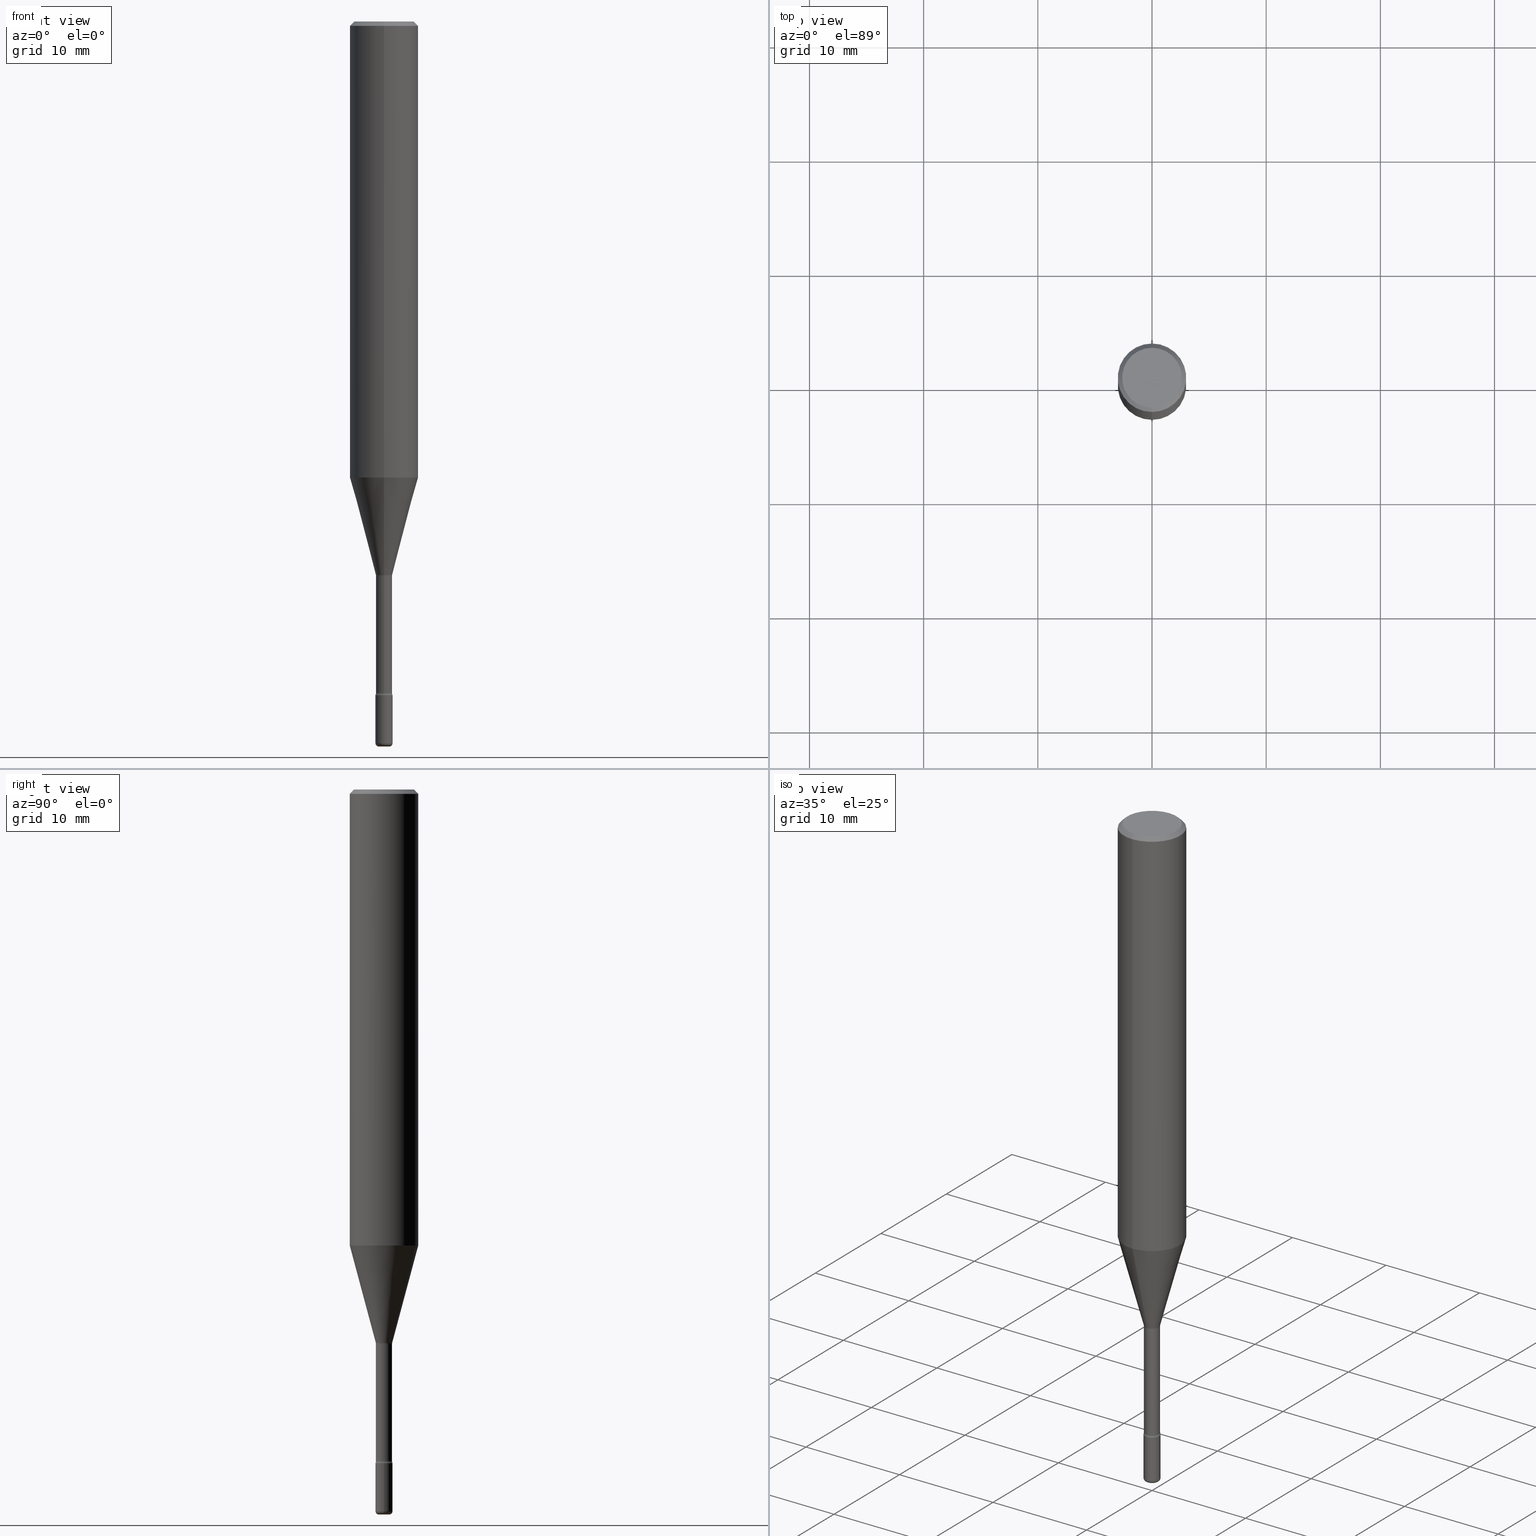
[diagram: canonical four-view strip — front | top / right | iso, engineering-drawing reading convention]
A machine part, canonical four-view strip (front | top / right | iso — engineering-drawing reading convention). The complete STEP part file that produces these views, byte-faithful:
ISO-10303-21;
HEADER;
FILE_DESCRIPTION (( 'STEP AP203' ),
    '1' );
FILE_NAME ('05318.STEP',
    '2024-03-06T20:01:53',
    ( '' ),
    ( '' ),
    'SwSTEP 2.0',
    'SolidWorks 2023',
    '' );
FILE_SCHEMA (( 'CONFIG_CONTROL_DESIGN' ));
ENDSEC;

DATA;
#1 = CARTESIAN_POINT ( 'NONE',  ( 5.201567624825857444E-16, 0.02831111260565732576, -1.907492501787273254 ) ) ;
#2 = CALENDAR_DATE ( 2024, 6, 3 ) ;
#3 = VERTEX_POINT ( 'NONE', #11 ) ;
#4 = EDGE_CURVE ( 'NONE', #375, #262, #450, .T. ) ;
#5 = AXIS2_PLACEMENT_3D ( 'NONE', #531, #396, #89 ) ;
#6 = ORIENTED_EDGE ( 'NONE', *, *, #113, .F. ) ;
#7 = ORIENTED_EDGE ( 'NONE', *, *, #210, .F. ) ;
#8 = PERSON_AND_ORGANIZATION ( #333, #384 ) ;
#9 = EDGE_CURVE ( 'NONE', #485, #416, #59, .T. ) ;
#10 = ORIENTED_EDGE ( 'NONE', *, *, #80, .F. ) ;
#11 = CARTESIAN_POINT ( 'NONE',  ( 7.723156721521011834E-16, 0.1031000000000000111, -3.887509258146911569E-16 ) ) ;
#12 = CIRCLE ( 'NONE', #287, 0.02954999999999999988 ) ;
#13 = VERTEX_POINT ( 'NONE', #452 ) ;
#14 = CARTESIAN_POINT ( 'NONE',  ( 0.01775000000000000189, -8.852650934636795640E-15, -2.500000000000000000 ) ) ;
#15 = CARTESIAN_POINT ( 'NONE',  ( 1.975308805413079384E-16, 0.02780000000000001567, 3.810208230623066369E-16 ) ) ;
#16 = VECTOR ( 'NONE', #127, 39.37007874015748854 ) ;
#17 = CARTESIAN_POINT ( 'NONE',  ( 2.063465471256859647E-16, 0.02954999999999189178, -2.322799999999999976 ) ) ;
#18 = ADVANCED_FACE ( 'NONE', ( #220 ), #50, .T. ) ;
#19 = CARTESIAN_POINT ( 'NONE',  ( 5.680334943006836279E-29, -8.110012853864858834E-15, -2.322799999999999976 ) ) ;
#20 = TOROIDAL_SURFACE ( 'NONE', #351, 0.04280000000000000471, 0.01500000000000002373 ) ;
#21 = LOCAL_TIME ( 15, 1, 53.00000000000000000, #312 ) ;
#22 = DIRECTION ( 'NONE',  ( -6.982962677686265922E-15, -1.000000000000000000, 0.000000000000000000 ) ) ;
#23 = ORIENTED_EDGE ( 'NONE', *, *, #497, .T. ) ;
#24 = CONICAL_SURFACE ( 'NONE', #555, 0.02831111260566398710, 0.2617993877991499074 ) ;
#25 = MECHANICAL_CONTEXT ( 'NONE', #120, 'mechanical' ) ;
#26 = ADVANCED_FACE ( 'NONE', ( #179 ), #318, .T. ) ;
#27 = CARTESIAN_POINT ( 'NONE',  ( -1.941263624396314333E-16, -0.02780000000000667007, -1.911374787463811176 ) ) ;
#28 = DIRECTION ( 'NONE',  ( -2.445468806185136597E-29, 3.491481338843145583E-15, 1.000000000000000000 ) ) ;
#29 = DIRECTION ( 'NONE',  ( -2.445735198447141486E-29, 3.491099849961848612E-15, 1.000000000000000000 ) ) ;
#30 = CARTESIAN_POINT ( 'NONE',  ( 1.239475875289923767E-16, 0.01774999999999127276, -2.500000000000000000 ) ) ;
#31 = CARTESIAN_POINT ( 'NONE',  ( 4.665221552395131109E-29, -6.659246786792900261E-15, -1.907492501787273254 ) ) ;
#32 = CARTESIAN_POINT ( 'NONE',  ( 5.680334943006836279E-29, -8.110012853864858834E-15, -2.322799999999999976 ) ) ;
#33 = LINE ( 'NONE', #529, #403 ) ;
#34 = CARTESIAN_POINT ( 'NONE',  ( 7.199434520694541042E-16, 0.1031000000000000111, -1.353049607272557930E-16 ) ) ;
#35 = DIRECTION ( 'NONE',  ( 1.000000000000000000, -6.982962677686235945E-15, 0.000000000000000000 ) ) ;
#36 = ADVANCED_FACE ( 'NONE', ( #227 ), #515, .T. ) ;
#37 =( LENGTH_UNIT ( ) NAMED_UNIT ( * ) SI_UNIT ( $, .METRE. ) );
#38 = ORIENTED_EDGE ( 'NONE', *, *, #223, .F. ) ;
#39 = DIRECTION ( 'NONE',  ( -2.445735198447141486E-29, 3.491099849961848612E-15, 1.000000000000000000 ) ) ;
#40 = AXIS2_PLACEMENT_3D ( 'NONE', #17, #465, #192 ) ;
#41 = CARTESIAN_POINT ( 'NONE',  ( 7.060985138204549542E-46, -1.004259905542615459E-31, -2.881853128362451060E-17 ) ) ;
#42 = CONICAL_SURFACE ( 'NONE', #520, 0.02831111260566398710, 0.2617993877991499074 ) ;
#43 = PERSON_AND_ORGANIZATION ( #333, #384 ) ;
#44 = APPROVAL ( #221, 'UNSPECIFIED' ) ;
#45 = ORIENTED_EDGE ( 'NONE', *, *, #4, .T. ) ;
#46 = PERSON_AND_ORGANIZATION ( #333, #384 ) ;
#47 = DIRECTION ( 'NONE',  ( -6.982962677686265922E-15, -1.000000000000000000, 3.491099849961848612E-15 ) ) ;
#48 = APPROVAL_PERSON_ORGANIZATION ( #185, #44, #219 ) ;
#49 = EDGE_LOOP ( 'NONE', ( #414, #131, #313, #261 ) ) ;
#50 = CYLINDRICAL_SURFACE ( 'NONE', #152, 0.02954999999999999988 ) ;
#51 = ADVANCED_FACE ( 'NONE', ( #368 ), #68, .F. ) ;
#52 = APPROVAL_DATE_TIME ( #572, #123 ) ;
#53 = CIRCLE ( 'NONE', #481, 0.1180999999999999966 ) ;
#54 = ORIENTED_EDGE ( 'NONE', *, *, #9, .F. ) ;
#55 = ORIENTED_EDGE ( 'NONE', *, *, #319, .F. ) ;
#56 = PRODUCT_DEFINITION_SHAPE ( 'NONE', 'NONE',  #304 ) ;
#57 = ORIENTED_EDGE ( 'NONE', *, *, #462, .F. ) ;
#58 = DIRECTION ( 'NONE',  ( -2.445735198447141486E-29, 3.491099849961848612E-15, 1.000000000000000000 ) ) ;
#59 = CIRCLE ( 'NONE', #543, 0.02780000000000002955 ) ;
#60 = ORIENTED_EDGE ( 'NONE', *, *, #266, .T. ) ;
#61 = FACE_OUTER_BOUND ( 'NONE', #533, .T. ) ;
#62 = DIRECTION ( 'NONE',  ( -2.445735198447141486E-29, 3.491099849961848612E-15, 1.000000000000000000 ) ) ;
#63 = CIRCLE ( 'NONE', #466, 0.02780000000000002955 ) ;
#64 = EDGE_CURVE ( 'NONE', #96, #258, #224, .T. ) ;
#65 = CARTESIAN_POINT ( 'NONE',  ( -1.976954426890781458E-16, -0.02831111260567064497, -1.907492501787273254 ) ) ;
#66 = FACE_OUTER_BOUND ( 'NONE', #138, .T. ) ;
#67 = ADVANCED_FACE ( 'NONE', ( #196 ), #20, .F. ) ;
#68 = PLANE ( 'NONE',  #40 ) ;
#69 = CIRCLE ( 'NONE', #366, 0.1031000000000000111 ) ;
#70 = AXIS2_PLACEMENT_3D ( 'NONE', #562, #28, #200 ) ;
#71 = CARTESIAN_POINT ( 'NONE',  ( -0.02954999999999999988, 2.099653784171096041E-16, -1.453545319170324550E-30 ) ) ;
#72 = CARTESIAN_POINT ( 'NONE',  ( 3.041122909053798096E-16, 0.04279999999999196253, -2.315768819444787852 ) ) ;
#73 = DIRECTION ( 'NONE',  ( -6.982962677686265922E-15, -1.000000000000000000, 3.487819265831411744E-15 ) ) ;
#74 = CARTESIAN_POINT ( 'NONE',  ( 2.099653784171664760E-16, 0.02954999999999190219, -2.322799999999999976 ) ) ;
#75 = DIRECTION ( 'NONE',  ( -6.982962677686265922E-15, -1.000000000000000000, 3.491099849961848612E-15 ) ) ;
#76 = AXIS2_PLACEMENT_3D ( 'NONE', #119, #432, #35 ) ;
#77 = CARTESIAN_POINT ( 'NONE',  ( -1.976954426890781458E-16, -0.02831111260567064497, -1.907492501787273254 ) ) ;
#78 = CARTESIAN_POINT ( 'NONE',  ( 3.041122909053696037E-16, 0.04279999999999332255, -1.911374787463811398 ) ) ;
#79 = DIRECTION ( 'NONE',  ( -2.445735198447141206E-29, 3.491099849961848612E-15, 1.000000000000000000 ) ) ;
#80 = EDGE_CURVE ( 'NONE', #258, #96, #12, .T. ) ;
#81 = AXIS2_PLACEMENT_3D ( 'NONE', #300, #83, #517 ) ;
#82 = AXIS2_PLACEMENT_3D ( 'NONE', #72, #425, #117 ) ;
#83 = DIRECTION ( 'NONE',  ( -2.445735198447141486E-29, 3.491099849961848612E-15, 1.000000000000000000 ) ) ;
#84 = ORIENTED_EDGE ( 'NONE', *, *, #377, .F. ) ;
#85 = ORIENTED_EDGE ( 'NONE', *, *, #454, .F. ) ;
#86 = DIRECTION ( 'NONE',  ( -2.445468806185136877E-29, 3.491481338843145188E-15, 1.000000000000000000 ) ) ;
#87 = EDGE_CURVE ( 'NONE', #310, #491, #214, .T. ) ;
#88 = EDGE_LOOP ( 'NONE', ( #356, #352, #95, #10 ) ) ;
#89 = DIRECTION ( 'NONE',  ( 6.982962677686265922E-15, 1.000000000000000000, -3.487819265831411744E-15 ) ) ;
#90 = ADVANCED_FACE ( 'NONE', ( #149 ), #441, .T. ) ;
#91 = APPROVAL_STATUS ( 'not_yet_approved' ) ;
#92 = DIRECTION ( 'NONE',  ( -2.445735198447141486E-29, 3.491099849961848612E-15, 1.000000000000000000 ) ) ;
#93 = AXIS2_PLACEMENT_3D ( 'NONE', #203, #386, #73 ) ;
#94 = COORDINATED_UNIVERSAL_TIME_OFFSET ( 5, 0, .BEHIND. ) ;
#95 = ORIENTED_EDGE ( 'NONE', *, *, #133, .T. ) ;
#96 = VERTEX_POINT ( 'NONE', #334 ) ;
#97 = EDGE_LOOP ( 'NONE', ( #235, #222, #324, #148 ) ) ;
#98 = ORIENTED_EDGE ( 'NONE', *, *, #223, .T. ) ;
#99 = DIRECTION ( 'NONE',  ( -2.445468806185136597E-29, 3.491481338843145583E-15, 1.000000000000000000 ) ) ;
#100 = CC_DESIGN_DATE_AND_TIME_ASSIGNMENT ( #401, #180, ( #276 ) ) ;
#101 = CIRCLE ( 'NONE', #424, 0.01500000000000001159 ) ;
#102 = EDGE_LOOP ( 'NONE', ( #38, #539, #280, #191 ) ) ;
#103 = ORIENTED_EDGE ( 'NONE', *, *, #391, .F. ) ;
#104 = EDGE_CURVE ( 'NONE', #375, #463, #544, .T. ) ;
#105 = ORIENTED_EDGE ( 'NONE', *, *, #362, .F. ) ;
#106 = DIRECTION ( 'NONE',  ( 1.000000000000000000, -6.982962677686261977E-15, 0.000000000000000000 ) ) ;
#107 = CIRCLE ( 'NONE', #76, 0.01775000000000000189 ) ;
#108 = ADVANCED_FACE ( 'NONE', ( #66 ), #464, .T. ) ;
#109 = CARTESIAN_POINT ( 'NONE',  ( 5.680334943006836279E-29, -8.110012853864858834E-15, -2.322799999999999976 ) ) ;
#110 = DIRECTION ( 'NONE',  ( -2.445735198447141486E-29, 3.491099849961848612E-15, 1.000000000000000000 ) ) ;
#111 = AXIS2_PLACEMENT_3D ( 'NONE', #440, #39, #480 ) ;
#112 = DIRECTION ( 'NONE',  ( -2.445468806185136597E-29, 3.491481338843145583E-15, 1.000000000000000000 ) ) ;
#113 = EDGE_CURVE ( 'NONE', #488, #498, #115, .T. ) ;
#114 = CARTESIAN_POINT ( 'NONE',  ( -1.169113584055446105E-44, 1.669184350826100908E-30, 4.780733988912460139E-16 ) ) ;
#115 = CIRCLE ( 'NONE', #190, 0.02954999999999999988 ) ;
#116 = CARTESIAN_POINT ( 'NONE',  ( -7.587710785535310407E-16, -0.1031000000000000111, 3.311138632474420741E-16 ) ) ;
#117 = DIRECTION ( 'NONE',  ( 7.105427357601001859E-15, 1.000000000000000000, 0.000000000000000000 ) ) ;
#118 = TOROIDAL_SURFACE ( 'NONE', #246, 0.04280000000000004634, 0.01500000000000001506 ) ;
#119 = CARTESIAN_POINT ( 'NONE',  ( 6.113672015462842613E-29, -8.728703347107864943E-15, -2.500000000000000000 ) ) ;
#120 = APPLICATION_CONTEXT ( 'configuration controlled 3d designs of mechanical parts and assemblies' ) ;
#121 = LINE ( 'NONE', #341, #283 ) ;
#122 = DIRECTION ( 'NONE',  ( 0.000000000000000000, 0.000000000000000000, 1.000000000000000000 ) ) ;
#123 = APPROVAL ( #265, 'UNSPECIFIED' ) ;
#124 = ORIENTED_EDGE ( 'NONE', *, *, #266, .F. ) ;
#125 = CARTESIAN_POINT ( 'NONE',  ( 8.246878922347483612E-16, 0.1180999999999999411, -0.01500000000000044006 ) ) ;
#126 = APPLICATION_PROTOCOL_DEFINITION ( 'international standard', 'config_control_design', 1994, #120 ) ;
#127 = DIRECTION ( 'NONE',  ( -4.851104656540962697E-15, -0.7071067811865497932, -0.7071067811865451302 ) ) ;
#128 = AXIS2_PLACEMENT_3D ( 'NONE', #34, #471, #430 ) ;
#129 = DIRECTION ( 'NONE',  ( -2.445735198447141206E-29, 3.491099849961848612E-15, 1.000000000000000000 ) ) ;
#130 = ORIENTED_EDGE ( 'NONE', *, *, #113, .T. ) ;
#131 = ORIENTED_EDGE ( 'NONE', *, *, #80, .T. ) ;
#132 = FACE_OUTER_BOUND ( 'NONE', #181, .T. ) ;
#133 = EDGE_CURVE ( 'NONE', #184, #96, #236, .T. ) ;
#134 = CALENDAR_DATE ( 2024, 6, 3 ) ;
#135 = ORIENTED_EDGE ( 'NONE', *, *, #143, .T. ) ;
#136 = ORIENTED_EDGE ( 'NONE', *, *, #311, .T. ) ;
#137 = DATE_TIME_ROLE ( 'creation_date' ) ;
#138 = EDGE_LOOP ( 'NONE', ( #234, #306 ) ) ;
#139 = ORIENTED_EDGE ( 'NONE', *, *, #308, .F. ) ;
#140 = AXIS2_PLACEMENT_3D ( 'NONE', #114, #469, #467 ) ;
#141 = ORIENTED_EDGE ( 'NONE', *, *, #160, .F. ) ;
#142 = PERSON_AND_ORGANIZATION_ROLE ( 'design_owner' ) ;
#143 = EDGE_CURVE ( 'NONE', #406, #258, #332, .T. ) ;
#144 = ORIENTED_EDGE ( 'NONE', *, *, #418, .F. ) ;
#145 = CARTESIAN_POINT ( 'NONE',  ( 5.663757313182499342E-29, -8.084580178110025826E-15, -2.315768819444787407 ) ) ;
#146 = MANIFOLD_SOLID_BREP ( 'Body-Move/Copy2[2]', #274 ) ;
#147 = ORIENTED_EDGE ( 'NONE', *, *, #536, .F. ) ;
#148 = ORIENTED_EDGE ( 'NONE', *, *, #270, .T. ) ;
#149 = FACE_OUTER_BOUND ( 'NONE', #188, .T. ) ;
#150 = ADVANCED_FACE ( 'NONE', ( #195 ), #421, .T. ) ;
#151 = CIRCLE ( 'NONE', #429, 0.1031000000000000111 ) ;
#152 = AXIS2_PLACEMENT_3D ( 'NONE', #402, #541, #502 ) ;
#153 = CARTESIAN_POINT ( 'NONE',  ( 0.01775000000000000189, -8.811451454838446578E-15, -2.488199999999999967 ) ) ;
#154 = DIRECTION ( 'NONE',  ( -2.445468806185136597E-29, 3.491481338843145583E-15, 1.000000000000000000 ) ) ;
#155 = AXIS2_PLACEMENT_3D ( 'NONE', #32, #251, #525 ) ;
#156 = CARTESIAN_POINT ( 'NONE',  ( 4.665221552395131109E-29, -6.659246786792900261E-15, -1.907492501787273254 ) ) ;
#157 = EDGE_LOOP ( 'NONE', ( #277, #172, #45, #317 ) ) ;
#158 = FACE_OUTER_BOUND ( 'NONE', #367, .T. ) ;
#159 = FACE_OUTER_BOUND ( 'NONE', #371, .T. ) ;
#160 = EDGE_CURVE ( 'NONE', #416, #485, #63, .T. ) ;
#161 =( NAMED_UNIT ( * ) SI_UNIT ( $, .STERADIAN. ) SOLID_ANGLE_UNIT ( ) );
#162 = DIRECTION ( 'NONE',  ( -6.982962677686265922E-15, -1.000000000000000000, 3.491099849961848612E-15 ) ) ;
#163 = AXIS2_PLACEMENT_3D ( 'NONE', #153, #381, #244 ) ;
#164 = DIRECTION ( 'NONE',  ( 1.000000000000000000, -6.982962677686247778E-15, 4.883557194083105614E-29 ) ) ;
#165 = CC_DESIGN_PERSON_AND_ORGANIZATION_ASSIGNMENT ( #316, #363, ( #276 ) ) ;
#166 = DIRECTION ( 'NONE',  ( -2.445735198447141486E-29, 3.491099849961848612E-15, 1.000000000000000000 ) ) ;
#167 = DIRECTION ( 'NONE',  ( -6.982962677686265922E-15, -1.000000000000000000, 3.491099849961848218E-15 ) ) ;
#168 = DIRECTION ( 'NONE',  ( -2.445468806185136877E-29, 3.491481338843145188E-15, 1.000000000000000000 ) ) ;
#169 = CARTESIAN_POINT ( 'NONE',  ( 5.680953718953020096E-29, -8.109126731491383240E-15, -2.322799999999999976 ) ) ;
#170 = LOCAL_TIME ( 15, 1, 53.00000000000000000, #443 ) ;
#171 = ADVANCED_FACE ( 'NONE', ( #61 ), #42, .T. ) ;
#172 = ORIENTED_EDGE ( 'NONE', *, *, #104, .F. ) ;
#173 = DIRECTION ( 'NONE',  ( -2.445735198447141486E-29, 3.491099849961848612E-15, 1.000000000000000000 ) ) ;
#174 = VECTOR ( 'NONE', #256, 39.37007874015748854 ) ;
#175 = DATE_AND_TIME ( #2, #478 ) ;
#176 = ORIENTED_EDGE ( 'NONE', *, *, #560, .T. ) ;
#177 = COORDINATED_UNIVERSAL_TIME_OFFSET ( 5, 0, .BEHIND. ) ;
#178 = CONICAL_SURFACE ( 'NONE', #5, 0.1180999999999999966, 0.7853981633974481680 ) ;
#179 = FACE_OUTER_BOUND ( 'NONE', #216, .T. ) ;
#180 = DATE_TIME_ROLE ( 'classification_date' ) ;
#181 = EDGE_LOOP ( 'NONE', ( #144, #273 ) ) ;
#182 = CC_DESIGN_PERSON_AND_ORGANIZATION_ASSIGNMENT ( #43, #404, ( #552 ) ) ;
#183 = ORIENTED_EDGE ( 'NONE', *, *, #233, .F. ) ;
#184 = VERTEX_POINT ( 'NONE', #14 ) ;
#185 = PERSON_AND_ORGANIZATION ( #333, #384 ) ;
#186 = ADVANCED_FACE ( 'NONE', ( #376 ), #288, .T. ) ;
#187 = VERTEX_POINT ( 'NONE', #373 ) ;
#188 = EDGE_LOOP ( 'NONE', ( #408, #237, #136, #103 ) ) ;
#189 = AXIS2_PLACEMENT_3D ( 'NONE', #364, #58, #47 ) ;
#190 = AXIS2_PLACEMENT_3D ( 'NONE', #282, #194, #468 ) ;
#191 = ORIENTED_EDGE ( 'NONE', *, *, #448, .F. ) ;
#192 = DIRECTION ( 'NONE',  ( -6.982962677686265922E-15, -1.000000000000000000, 3.491099849961848612E-15 ) ) ;
#193 = CIRCLE ( 'NONE', #268, 0.02779999999999999832 ) ;
#194 = DIRECTION ( 'NONE',  ( -2.445735198447141486E-29, 3.491099849961848612E-15, 1.000000000000000000 ) ) ;
#195 = FACE_OUTER_BOUND ( 'NONE', #461, .T. ) ;
#196 = FACE_OUTER_BOUND ( 'NONE', #157, .T. ) ;
#197 = APPROVAL_PERSON_ORGANIZATION ( #226, #123, #398 ) ;
#198 = CC_DESIGN_DATE_AND_TIME_ASSIGNMENT ( #175, #137, ( #304 ) ) ;
#199 = CARTESIAN_POINT ( 'NONE',  ( -1.169113584055446105E-44, 1.669184350826100908E-30, 4.780733988912460139E-16 ) ) ;
#200 = DIRECTION ( 'NONE',  ( 1.000000000000000000, -6.982962677686266711E-15, 4.876176775795935793E-29 ) ) ;
#201 = CARTESIAN_POINT ( 'NONE',  ( 3.668602797670719043E-31, -5.236649774942783100E-17, -0.01500000000000002720 ) ) ;
#202 = LENGTH_MEASURE_WITH_UNIT ( LENGTH_MEASURE( 0.02539999999999999897 ), #37 );
#203 = CARTESIAN_POINT ( 'NONE',  ( 3.668602797670719043E-31, -5.236649774942783100E-17, -0.01500000000000002720 ) ) ;
#204 = FACE_OUTER_BOUND ( 'NONE', #231, .T. ) ;
#205 = CC_DESIGN_PERSON_AND_ORGANIZATION_ASSIGNMENT ( #8, #490, ( #552 ) ) ;
#206 = DIRECTION ( 'NONE',  ( -6.982962677686265922E-15, -1.000000000000000000, 4.626330217890369336E-15 ) ) ;
#207 = DIRECTION ( 'NONE',  ( -6.982962677686265922E-15, -1.000000000000000000, 0.000000000000000000 ) ) ;
#208 = AXIS2_PLACEMENT_3D ( 'NONE', #241, #330, #420 ) ;
#209 = DIRECTION ( 'NONE',  ( -6.982962677686265922E-15, -1.000000000000000000, 0.000000000000000000 ) ) ;
#210 = EDGE_CURVE ( 'NONE', #375, #538, #548, .T. ) ;
#211 = PLANE ( 'NONE',  #128 ) ;
#212 = ORIENTED_EDGE ( 'NONE', *, *, #104, .T. ) ;
#213 = FACE_OUTER_BOUND ( 'NONE', #97, .T. ) ;
#214 = CIRCLE ( 'NONE', #338, 0.02954999999999999988 ) ;
#215 = PERSON_AND_ORGANIZATION ( #333, #384 ) ;
#216 = EDGE_LOOP ( 'NONE', ( #407, #23, #457, #105 ) ) ;
#217 = CARTESIAN_POINT ( 'NONE',  ( 3.845663783486448442E-29, -5.489390783621017201E-15, -1.572395812076531119 ) ) ;
#218 = TOROIDAL_SURFACE ( 'NONE', #537, 0.04280000000000000471, 0.01500000000000002373 ) ;
#219 = APPROVAL_ROLE ( '' ) ;
#220 = FACE_OUTER_BOUND ( 'NONE', #495, .T. ) ;
#221 = APPROVAL_STATUS ( 'not_yet_approved' ) ;
#222 = ORIENTED_EDGE ( 'NONE', *, *, #285, .F. ) ;
#223 = EDGE_CURVE ( 'NONE', #416, #13, #242, .T. ) ;
#224 = CIRCLE ( 'NONE', #394, 0.02954999999999999988 ) ;
#225 = CC_DESIGN_SECURITY_CLASSIFICATION ( #276, ( #552 ) ) ;
#226 = PERSON_AND_ORGANIZATION ( #333, #384 ) ;
#227 = FACE_OUTER_BOUND ( 'NONE', #88, .T. ) ;
#228 = AXIS2_PLACEMENT_3D ( 'NONE', #78, #426, #260 ) ;
#229 = DESIGN_CONTEXT ( 'detailed design', #239, 'design' ) ;
#230 = AXIS2_PLACEMENT_3D ( 'NONE', #169, #259, #209 ) ;
#231 = EDGE_LOOP ( 'NONE', ( #547, #135, #370, #361 ) ) ;
#232 = ORIENTED_EDGE ( 'NONE', *, *, #448, .T. ) ;
#233 = EDGE_CURVE ( 'NONE', #416, #488, #342, .T. ) ;
#234 = ORIENTED_EDGE ( 'NONE', *, *, #87, .T. ) ;
#235 = ORIENTED_EDGE ( 'NONE', *, *, #337, .F. ) ;
#236 = CIRCLE ( 'NONE', #163, 0.01180000000000033626 ) ;
#237 = ORIENTED_EDGE ( 'NONE', *, *, #337, .T. ) ;
#238 = CARTESIAN_POINT ( 'NONE',  ( 6.084815483549856310E-29, -8.687503867309514303E-15, -2.488199999999999967 ) ) ;
#239 = APPLICATION_CONTEXT ( 'configuration controlled 3d designs of mechanical parts and assemblies' ) ;
#240 = CIRCLE ( 'NONE', #374, 0.02831111260566398710 ) ;
#241 = CARTESIAN_POINT ( 'NONE',  ( -0.01775000000000000189, -8.561382531712097000E-15, -2.488199999999999967 ) ) ;
#242 = LINE ( 'NONE', #15, #470 ) ;
#243 = ADVANCED_FACE ( 'NONE', ( #431 ), #218, .F. ) ;
#244 = DIRECTION ( 'NONE',  ( 1.000000000000000000, -6.982962677686347963E-15, 0.000000000000000000 ) ) ;
#245 = CC_DESIGN_APPROVAL ( #44, ( #552 ) ) ;
#246 = AXIS2_PLACEMENT_3D ( 'NONE', #561, #340, #162 ) ;
#247 = DIRECTION ( 'NONE',  ( -2.445735198447141486E-29, 3.491099849961848612E-15, 1.000000000000000000 ) ) ;
#248 = EDGE_CURVE ( 'NONE', #491, #310, #571, .T. ) ;
#249 = DIRECTION ( 'NONE',  ( -6.982962677686265922E-15, -1.000000000000000000, 0.000000000000000000 ) ) ;
#250 = CARTESIAN_POINT ( 'NONE',  ( -8.102248135368174406E-16, -0.1181000000000000522, -0.01499999999999961607 ) ) ;
#251 = DIRECTION ( 'NONE',  ( -2.445468806185136597E-29, 3.491481338843145583E-15, 1.000000000000000000 ) ) ;
#252 = LINE ( 'NONE', #442, #563 ) ;
#253 = LINE ( 'NONE', #435, #301 ) ;
#254 = ORIENTED_EDGE ( 'NONE', *, *, #497, .F. ) ;
#255 = AXIS2_PLACEMENT_3D ( 'NONE', #390, #303, #164 ) ;
#256 = DIRECTION ( 'NONE',  ( 4.937700262164546464E-15, 0.7071067811865447972, -0.7071067811865500152 ) ) ;
#257 = CARTESIAN_POINT ( 'NONE',  ( 8.391509709327170485E-16, 0.1180999999999999689, -0.01500000000000044006 ) ) ;
#258 = VERTEX_POINT ( 'NONE', #565 ) ;
#259 = DIRECTION ( 'NONE',  ( -2.445735198447141486E-29, 3.491099849961848612E-15, 1.000000000000000000 ) ) ;
#260 = DIRECTION ( 'NONE',  ( 7.105427357600997914E-15, 1.000000000000000000, 0.000000000000000000 ) ) ;
#261 = ORIENTED_EDGE ( 'NONE', *, *, #248, .F. ) ;
#262 = VERTEX_POINT ( 'NONE', #27 ) ;
#263 = CARTESIAN_POINT ( 'NONE',  ( 2.037481294792655692E-16, 0.02779999999999194574, -2.315768819444787407 ) ) ;
#264 = AXIS2_PLACEMENT_3D ( 'NONE', #326, #508, #509 ) ;
#265 = APPROVAL_STATUS ( 'not_yet_approved' ) ;
#266 = EDGE_CURVE ( 'NONE', #463, #375, #240, .T. ) ;
#267 = ORIENTED_EDGE ( 'NONE', *, *, #4, .F. ) ;
#268 = AXIS2_PLACEMENT_3D ( 'NONE', #472, #475, #249 ) ;
#269 = CALENDAR_DATE ( 2024, 6, 3 ) ;
#270 = EDGE_CURVE ( 'NONE', #545, #187, #482, .T. ) ;
#271 = DIRECTION ( 'NONE',  ( -6.982962677686265922E-15, -1.000000000000000000, 0.000000000000000000 ) ) ;
#272 = EDGE_LOOP ( 'NONE', ( #445, #6 ) ) ;
#273 = ORIENTED_EDGE ( 'NONE', *, *, #359, .F. ) ;
#274 = CLOSED_SHELL ( 'NONE', ( #243, #186, #275, #90, #26, #521, #171, #150, #395, #553, #51, #512, #346, #67 ) ) ;
#275 = ADVANCED_FACE ( 'NONE', ( #159 ), #118, .F. ) ;
#276 = SECURITY_CLASSIFICATION ( '', '', #449 ) ;
#277 = ORIENTED_EDGE ( 'NONE', *, *, #487, .F. ) ;
#278 = DIRECTION ( 'NONE',  ( 1.000000000000000000, -6.982962677686247778E-15, 4.883557194083105614E-29 ) ) ;
#279 = TOROIDAL_SURFACE ( 'NONE', #81, 0.04280000000000004634, 0.01500000000000001506 ) ;
#280 = ORIENTED_EDGE ( 'NONE', *, *, #377, .T. ) ;
#281 = CARTESIAN_POINT ( 'NONE',  ( 6.084815483549856310E-29, -8.687503867309514303E-15, -2.488199999999999967 ) ) ;
#282 = CARTESIAN_POINT ( 'NONE',  ( 5.680953718953020096E-29, -8.109126731491383240E-15, -2.322799999999999976 ) ) ;
#283 = VECTOR ( 'NONE', #298, 39.37007874015748854 ) ;
#284 = DIRECTION ( 'NONE',  ( -6.982962677686265922E-15, -1.000000000000000000, 0.000000000000000000 ) ) ;
#285 = EDGE_CURVE ( 'NONE', #3, #535, #69, .T. ) ;
#286 = DIRECTION ( 'NONE',  ( 1.000000000000000000, -6.982962677686265922E-15, 4.876176775795935793E-29 ) ) ;
#287 = AXIS2_PLACEMENT_3D ( 'NONE', #238, #154, #505 ) ;
#288 = CYLINDRICAL_SURFACE ( 'NONE', #140, 0.02780000000000001567 ) ;
#289 = ORIENTED_EDGE ( 'NONE', *, *, #64, .T. ) ;
#290 = CARTESIAN_POINT ( 'NONE',  ( -2.988708026049158050E-16, -0.04280000000000813015, -2.315768819444787407 ) ) ;
#291 = DIRECTION ( 'NONE',  ( -2.445735198447141206E-29, 3.491099849961848612E-15, 1.000000000000000000 ) ) ;
#292 = CYLINDRICAL_SURFACE ( 'NONE', #70, 0.02954999999999999988 ) ;
#293 = DIRECTION ( 'NONE',  ( -2.445735198447141486E-29, 3.491099849961848612E-15, 1.000000000000000000 ) ) ;
#294 = ADVANCED_BREP_SHAPE_REPRESENTATION ( '05318', ( #513, #146, #323 ), #503 ) ;
#295 = DIRECTION ( 'NONE',  ( -6.982962677686265922E-15, -1.000000000000000000, 3.491099849961848218E-15 ) ) ;
#296 = CARTESIAN_POINT ( 'NONE',  ( -8.246878922347479668E-16, -0.1180999999999999966, 8.903722911717403556E-16 ) ) ;
#297 = DIRECTION ( 'NONE',  ( 1.000000000000000000, 0.000000000000000000, 0.000000000000000000 ) ) ;
#298 = DIRECTION ( 'NONE',  ( 1.839019923739597554E-15, 0.2588190451025245697, 0.9659258262890670910 ) ) ;
#299 = CC_DESIGN_APPROVAL ( #123, ( #304 ) ) ;
#300 = CARTESIAN_POINT ( 'NONE',  ( 5.663140410288407648E-29, -8.085463618166297147E-15, -2.315768819444787407 ) ) ;
#301 = VECTOR ( 'NONE', #129, 39.37007874015748143 ) ;
#302 = ORIENTED_EDGE ( 'NONE', *, *, #9, .T. ) ;
#303 = DIRECTION ( 'NONE',  ( -2.445468806185136597E-29, 3.491481338843145583E-15, 1.000000000000000000 ) ) ;
#304 = PRODUCT_DEFINITION ( 'UNKNOWN', '', #552, #229 ) ;
#305 = CARTESIAN_POINT ( 'NONE',  ( -8.246878922347096084E-16, -0.1181000000000055200, -1.572395812076530897 ) ) ;
#306 = ORIENTED_EDGE ( 'NONE', *, *, #248, .T. ) ;
#307 = DIRECTION ( 'NONE',  ( -1.000000000000000000, 6.982962677686265922E-15, -4.876176775795935793E-29 ) ) ;
#308 = EDGE_CURVE ( 'NONE', #262, #13, #193, .T. ) ;
#309 = DATE_AND_TIME ( #134, #422 ) ;
#310 = VERTEX_POINT ( 'NONE', #427 ) ;
#311 = EDGE_CURVE ( 'NONE', #187, #545, #556, .T. ) ;
#312 = COORDINATED_UNIVERSAL_TIME_OFFSET ( 5, 0, .BEHIND. ) ;
#313 = ORIENTED_EDGE ( 'NONE', *, *, #454, .T. ) ;
#314 = DATE_AND_TIME ( #369, #21 ) ;
#315 = DIRECTION ( 'NONE',  ( -1.000000000000000000, 6.982962677686265922E-15, -4.883557194083112340E-29 ) ) ;
#316 = PERSON_AND_ORGANIZATION ( #333, #384 ) ;
#317 = ORIENTED_EDGE ( 'NONE', *, *, #308, .T. ) ;
#318 = CYLINDRICAL_SURFACE ( 'NONE', #189, 0.1180999999999999966 ) ;
#319 = EDGE_CURVE ( 'NONE', #463, #451, #121, .T. ) ;
#320 = PERSON_AND_ORGANIZATION ( #333, #384 ) ;
#321 = DIRECTION ( 'NONE',  ( -6.982962677686263555E-15, -1.000000000000000000, 0.000000000000000000 ) ) ;
#322 = AXIS2_PLACEMENT_3D ( 'NONE', #201, #389, #559 ) ;
#323 = AXIS2_PLACEMENT_3D ( 'NONE', #524, #122, #297 ) ;
#324 = ORIENTED_EDGE ( 'NONE', *, *, #391, .T. ) ;
#325 = DIRECTION ( 'NONE',  ( -2.445468806185136597E-29, 3.491481338843145583E-15, 1.000000000000000000 ) ) ;
#326 = CARTESIAN_POINT ( 'NONE',  ( 3.668602797670719043E-31, -5.236649774942783100E-17, -0.01500000000000002720 ) ) ;
#327 = AXIS2_PLACEMENT_3D ( 'NONE', #348, #173, #568 ) ;
#328 = CLOSED_SHELL ( 'NONE', ( #18, #350, #108, #459, #36, #474 ) ) ;
#329 = EDGE_CURVE ( 'NONE', #498, #488, #399, .T. ) ;
#330 = DIRECTION ( 'NONE',  ( 7.105427357601001859E-15, 1.000000000000000000, -3.491481338843145583E-15 ) ) ;
#331 = CIRCLE ( 'NONE', #228, 0.01500000000000002720 ) ;
#332 = CIRCLE ( 'NONE', #208, 0.01180000000000033626 ) ;
#333 = PERSON ( 'UNSPECIFIED', 'UNSPECIFIED', 'UNSPECIFIED', ('UNSPECIFIED'), ('UNSPECIFIED'), ('UNSPECIFIED') ) ;
#334 = CARTESIAN_POINT ( 'NONE',  ( 0.02955000000000016641, -8.893850414435146280E-15, -2.488199999999999967 ) ) ;
#335 = DIRECTION ( 'NONE',  ( -2.445735198447141486E-29, 3.491099849961848612E-15, 1.000000000000000000 ) ) ;
#336 = ORIENTED_EDGE ( 'NONE', *, *, #433, .T. ) ;
#337 = EDGE_CURVE ( 'NONE', #535, #187, #526, .T. ) ;
#338 = AXIS2_PLACEMENT_3D ( 'NONE', #19, #112, #511 ) ;
#339 = FACE_OUTER_BOUND ( 'NONE', #460, .T. ) ;
#340 = DIRECTION ( 'NONE',  ( -2.445735198447141486E-29, 3.491099849961848612E-15, 1.000000000000000000 ) ) ;
#341 = CARTESIAN_POINT ( 'NONE',  ( 2.011625540324540952E-16, 0.02831111260565732576, -1.907492501787273254 ) ) ;
#342 = CIRCLE ( 'NONE', #82, 0.01500000000000001159 ) ;
#343 = CARTESIAN_POINT ( 'NONE',  ( -0.02954999999999999988, -8.188792982170078000E-15, -2.322799999999999976 ) ) ;
#344 = DIRECTION ( 'NONE',  ( -2.445735198447141486E-29, 3.491099849961848612E-15, 1.000000000000000000 ) ) ;
#345 = DIRECTION ( 'NONE',  ( -2.445735198447141486E-29, 3.491099849961848612E-15, 1.000000000000000000 ) ) ;
#346 = ADVANCED_FACE ( 'NONE', ( #489 ), #354, .T. ) ;
#347 = CARTESIAN_POINT ( 'NONE',  ( 4.674207419671495875E-29, -6.673529401965179821E-15, -1.911374787463811176 ) ) ;
#348 = CARTESIAN_POINT ( 'NONE',  ( 4.674716595124667421E-29, -6.672800233735771352E-15, -1.911374787463811176 ) ) ;
#349 = CARTESIAN_POINT ( 'NONE',  ( 3.845663783486448442E-29, -5.489390783621017201E-15, -1.572395812076531119 ) ) ;
#350 = ADVANCED_FACE ( 'NONE', ( #204 ), #434, .T. ) ;
#351 = AXIS2_PLACEMENT_3D ( 'NONE', #378, #62, #554 ) ;
#352 = ORIENTED_EDGE ( 'NONE', *, *, #359, .T. ) ;
#353 = ORIENTED_EDGE ( 'NONE', *, *, #233, .T. ) ;
#354 = CYLINDRICAL_SURFACE ( 'NONE', #111, 0.02780000000000001567 ) ;
#355 = CARTESIAN_POINT ( 'NONE',  ( -2.063465471255723934E-16, -0.02955000000000811491, -2.322799999999999976 ) ) ;
#356 = ORIENTED_EDGE ( 'NONE', *, *, #143, .F. ) ;
#357 = AXIS2_PLACEMENT_3D ( 'NONE', #349, #438, #206 ) ;
#358 = CARTESIAN_POINT ( 'NONE',  ( 8.391509709327165554E-16, 0.1180999999999945010, -1.572395812076531563 ) ) ;
#359 = EDGE_CURVE ( 'NONE', #406, #184, #549, .T. ) ;
#360 = CALENDAR_DATE ( 2024, 6, 3 ) ;
#361 = ORIENTED_EDGE ( 'NONE', *, *, #133, .F. ) ;
#362 = EDGE_CURVE ( 'NONE', #538, #187, #473, .T. ) ;
#363 = PERSON_AND_ORGANIZATION_ROLE ( 'classification_officer' ) ;
#364 = CARTESIAN_POINT ( 'NONE',  ( -1.169113584055446105E-44, 1.669184350826100908E-30, 4.780733988912460139E-16 ) ) ;
#365 = ORIENTED_EDGE ( 'NONE', *, *, #487, .T. ) ;
#366 = AXIS2_PLACEMENT_3D ( 'NONE', #518, #344, #295 ) ;
#367 = EDGE_LOOP ( 'NONE', ( #212, #484, #57, #7 ) ) ;
#368 = FACE_OUTER_BOUND ( 'NONE', #272, .T. ) ;
#369 = CALENDAR_DATE ( 2024, 6, 3 ) ;
#370 = ORIENTED_EDGE ( 'NONE', *, *, #64, .F. ) ;
#371 = EDGE_LOOP ( 'NONE', ( #141, #353, #130, #147 ) ) ;
#372 = AXIS2_PLACEMENT_3D ( 'NONE', #109, #379, #286 ) ;
#373 = CARTESIAN_POINT ( 'NONE',  ( -8.246878922347475723E-16, -0.1181000000000000522, -0.01499999999999961607 ) ) ;
#374 = AXIS2_PLACEMENT_3D ( 'NONE', #383, #29, #207 ) ;
#375 = VERTEX_POINT ( 'NONE', #77 ) ;
#376 = FACE_OUTER_BOUND ( 'NONE', #415, .T. ) ;
#377 = EDGE_CURVE ( 'NONE', #485, #262, #252, .T. ) ;
#378 = CARTESIAN_POINT ( 'NONE',  ( 4.674207419671495875E-29, -6.673529401965179821E-15, -1.911374787463811176 ) ) ;
#379 = DIRECTION ( 'NONE',  ( -2.438088387897960049E-29, 3.491481338843145188E-15, 1.000000000000000000 ) ) ;
#380 = CC_DESIGN_PERSON_AND_ORGANIZATION_ASSIGNMENT ( #46, #532, ( #304 ) ) ;
#381 = DIRECTION ( 'NONE',  ( -6.982962677686266711E-15, -1.000000000000000000, 3.491481338843145583E-15 ) ) ;
#382 = DIRECTION ( 'NONE',  ( -6.982962677686266711E-15, -1.000000000000000000, 0.000000000000000000 ) ) ;
#383 = CARTESIAN_POINT ( 'NONE',  ( 4.665221552395131109E-29, -6.659246786792900261E-15, -1.907492501787273254 ) ) ;
#384 = ORGANIZATION ( 'UNSPECIFIED', 'UNSPECIFIED', '' ) ;
#385 =( NAMED_UNIT ( * ) PLANE_ANGLE_UNIT ( ) SI_UNIT ( $, .RADIAN. ) );
#386 = DIRECTION ( 'NONE',  ( -2.445735198447141486E-29, 3.491099849961848612E-15, 1.000000000000000000 ) ) ;
#387 = DIRECTION ( 'NONE',  ( 2.438088387897960049E-29, -3.491481338843145188E-15, -1.000000000000000000 ) ) ;
#388 = FACE_OUTER_BOUND ( 'NONE', #492, .T. ) ;
#389 = DIRECTION ( 'NONE',  ( -2.445735198447141486E-29, 3.491099849961848612E-15, 1.000000000000000000 ) ) ;
#390 = CARTESIAN_POINT ( 'NONE',  ( 6.084815483549856310E-29, -8.687503867309514303E-15, -2.488199999999999967 ) ) ;
#391 = EDGE_CURVE ( 'NONE', #3, #545, #523, .T. ) ;
#392 = DIRECTION ( 'NONE',  ( -1.000000000000000000, 6.982962677686265922E-15, -4.883557194083112340E-29 ) ) ;
#393 = DIRECTION ( 'NONE',  ( -2.445735198447141206E-29, 3.491099849961848612E-15, 1.000000000000000000 ) ) ;
#394 = AXIS2_PLACEMENT_3D ( 'NONE', #281, #325, #106 ) ;
#395 = ADVANCED_FACE ( 'NONE', ( #213 ), #178, .T. ) ;
#396 = DIRECTION ( 'NONE',  ( 2.445735198447141486E-29, -3.491099849961848612E-15, -1.000000000000000000 ) ) ;
#397 = APPROVAL_PERSON_ORGANIZATION ( #320, #569, #534 ) ;
#398 = APPROVAL_ROLE ( '' ) ;
#399 = CIRCLE ( 'NONE', #230, 0.02954999999999999988 ) ;
#400 = DIRECTION ( 'NONE',  ( -6.982962677686265922E-15, -1.000000000000000000, 4.626330217890369336E-15 ) ) ;
#401 = DATE_AND_TIME ( #269, #170 ) ;
#402 = CARTESIAN_POINT ( 'NONE',  ( 0.000000000000000000, 0.000000000000000000, 0.000000000000000000 ) ) ;
#403 = VECTOR ( 'NONE', #86, 39.37007874015748143 ) ;
#404 = PERSON_AND_ORGANIZATION_ROLE ( 'design_supplier' ) ;
#405 = AXIS2_PLACEMENT_3D ( 'NONE', #546, #315, #321 ) ;
#406 = VERTEX_POINT ( 'NONE', #570 ) ;
#407 = ORIENTED_EDGE ( 'NONE', *, *, #462, .T. ) ;
#408 = ORIENTED_EDGE ( 'NONE', *, *, #433, .F. ) ;
#409 = CIRCLE ( 'NONE', #357, 0.1180999999999999966 ) ;
#410 = AXIS2_PLACEMENT_3D ( 'NONE', #199, #110, #557 ) ;
#411 = CC_DESIGN_PERSON_AND_ORGANIZATION_ASSIGNMENT ( #215, #142, ( #506 ) ) ;
#412 = APPROVAL_DATE_TIME ( #309, #44 ) ;
#413 = ORIENTED_EDGE ( 'NONE', *, *, #87, .F. ) ;
#414 = ORIENTED_EDGE ( 'NONE', *, *, #560, .F. ) ;
#415 = EDGE_LOOP ( 'NONE', ( #302, #98, #139, #84 ) ) ;
#416 = VERTEX_POINT ( 'NONE', #263 ) ;
#417 = DIRECTION ( 'NONE',  ( -1.807323732225327773E-15, -0.2588190451025178529, 0.9659258262890690894 ) ) ;
#418 = EDGE_CURVE ( 'NONE', #184, #406, #107, .T. ) ;
#419 = AXIS2_PLACEMENT_3D ( 'NONE', #486, #566, #476 ) ;
#420 = DIRECTION ( 'NONE',  ( -1.000000000000000000, 7.105427357601042879E-15, 0.000000000000000000 ) ) ;
#421 = CYLINDRICAL_SURFACE ( 'NONE', #410, 0.1180999999999999966 ) ;
#422 = LOCAL_TIME ( 15, 1, 53.00000000000000000, #177 ) ;
#423 = CARTESIAN_POINT ( 'NONE',  ( 4.665221552395131109E-29, -6.659246786792900261E-15, -1.907492501787273254 ) ) ;
#424 = AXIS2_PLACEMENT_3D ( 'NONE', #290, #392, #382 ) ;
#425 = DIRECTION ( 'NONE',  ( 1.000000000000000000, -7.105427357601001070E-15, 4.926310836650708410E-29 ) ) ;
#426 = DIRECTION ( 'NONE',  ( 1.000000000000000000, -7.105427357601001070E-15, 4.926310836650708410E-29 ) ) ;
#427 = CARTESIAN_POINT ( 'NONE',  ( 0.02954999999999999988, -8.316359400990487656E-15, -2.322799999999999976 ) ) ;
#428 = PLANE ( 'NONE',  #510 ) ;
#429 = AXIS2_PLACEMENT_3D ( 'NONE', #41, #437, #167 ) ;
#430 = DIRECTION ( 'NONE',  ( 6.982962677686265922E-15, 1.000000000000000000, -3.491099849961848612E-15 ) ) ;
#431 = FACE_OUTER_BOUND ( 'NONE', #530, .T. ) ;
#432 = DIRECTION ( 'NONE',  ( -2.445468806185136597E-29, 3.491481338843145583E-15, 1.000000000000000000 ) ) ;
#433 = EDGE_CURVE ( 'NONE', #535, #3, #151, .T. ) ;
#434 = TOROIDAL_SURFACE ( 'NONE', #255, 0.01775000000000000189, 0.01180000000000033800 ) ;
#435 = CARTESIAN_POINT ( 'NONE',  ( 8.391509709326781971E-16, 0.1180999999999999966, 6.577450661075172151E-17 ) ) ;
#436 = ORIENTED_EDGE ( 'NONE', *, *, #285, .T. ) ;
#437 = DIRECTION ( 'NONE',  ( -2.445735198447141486E-29, 3.491099849961848612E-15, 1.000000000000000000 ) ) ;
#438 = DIRECTION ( 'NONE',  ( -2.445735198447141486E-29, 3.491099849961848612E-15, 1.000000000000000000 ) ) ;
#439 = ORIENTED_EDGE ( 'NONE', *, *, #536, .T. ) ;
#440 = CARTESIAN_POINT ( 'NONE',  ( -1.169113584055446105E-44, 1.669184350826100908E-30, 4.780733988912460139E-16 ) ) ;
#441 = CONICAL_SURFACE ( 'NONE', #264, 0.1180999999999999966, 0.7853981633974481680 ) ;
#442 = CARTESIAN_POINT ( 'NONE',  ( -1.941263624396782966E-16, -0.02780000000000001567, 5.751259747201854896E-16 ) ) ;
#443 = COORDINATED_UNIVERSAL_TIME_OFFSET ( 5, 0, .BEHIND. ) ;
#444 = VECTOR ( 'NONE', #393, 39.37007874015748143 ) ;
#445 = ORIENTED_EDGE ( 'NONE', *, *, #329, .F. ) ;
#446 = SHAPE_DEFINITION_REPRESENTATION ( #56, #294 ) ;
#447 = ORIENTED_EDGE ( 'NONE', *, *, #558, .T. ) ;
#448 = EDGE_CURVE ( 'NONE', #13, #262, #507, .T. ) ;
#449 = SECURITY_CLASSIFICATION_LEVEL ( 'unclassified' ) ;
#450 = CIRCLE ( 'NONE', #405, 0.01500000000000002720 ) ;
#451 = VERTEX_POINT ( 'NONE', #358 ) ;
#452 = CARTESIAN_POINT ( 'NONE',  ( 1.975308805413645638E-16, 0.02779999999999332658, -1.911374787463811176 ) ) ;
#453 = DIMENSIONAL_EXPONENTS ( 1.000000000000000000, 0.000000000000000000, 0.000000000000000000, 0.000000000000000000, 0.000000000000000000, 0.000000000000000000, 0.000000000000000000 ) ;
#454 = EDGE_CURVE ( 'NONE', #96, #310, #33, .T. ) ;
#455 = UNCERTAINTY_MEASURE_WITH_UNIT (LENGTH_MEASURE( 1.000000000000000082E-05 ), #522, 'distance_accuracy_value', 'NONE');
#456 = APPLICATION_PROTOCOL_DEFINITION ( 'international standard', 'config_control_design', 1994, #239 ) ;
#457 = ORIENTED_EDGE ( 'NONE', *, *, #311, .F. ) ;
#458 = VECTOR ( 'NONE', #168, 39.37007874015748143 ) ;
#459 = ADVANCED_FACE ( 'NONE', ( #132 ), #428, .T. ) ;
#460 = EDGE_LOOP ( 'NONE', ( #183, #54, #439, #528 ) ) ;
#461 = EDGE_LOOP ( 'NONE', ( #254, #447, #479, #501 ) ) ;
#462 = EDGE_CURVE ( 'NONE', #538, #451, #53, .T. ) ;
#463 = VERTEX_POINT ( 'NONE', #1 ) ;
#464 = PLANE ( 'NONE',  #372 ) ;
#465 = DIRECTION ( 'NONE',  ( -2.445735198447141206E-29, 3.491099849961848612E-15, 1.000000000000000000 ) ) ;
#466 = AXIS2_PLACEMENT_3D ( 'NONE', #550, #247, #284 ) ;
#467 = DIRECTION ( 'NONE',  ( -6.982962677686265922E-15, -1.000000000000000000, 3.491099849961847429E-15 ) ) ;
#468 = DIRECTION ( 'NONE',  ( -6.982962677686265922E-15, -1.000000000000000000, 0.000000000000000000 ) ) ;
#469 = DIRECTION ( 'NONE',  ( -2.445735198447141486E-29, 3.491099849961848612E-15, 1.000000000000000000 ) ) ;
#470 = VECTOR ( 'NONE', #291, 39.37007874015748143 ) ;
#471 = DIRECTION ( 'NONE',  ( 2.445735198447141206E-29, -3.491099849961848612E-15, -1.000000000000000000 ) ) ;
#472 = CARTESIAN_POINT ( 'NONE',  ( 4.674716595124667421E-29, -6.672800233735771352E-15, -1.911374787463811176 ) ) ;
#473 = LINE ( 'NONE', #296, #444 ) ;
#474 = ADVANCED_FACE ( 'NONE', ( #519 ), #292, .T. ) ;
#475 = DIRECTION ( 'NONE',  ( -2.445735198447141486E-29, 3.491099849961848612E-15, 1.000000000000000000 ) ) ;
#476 = DIRECTION ( 'NONE',  ( 1.000000000000000000, -6.982962677686235945E-15, 0.000000000000000000 ) ) ;
#477 = AXIS2_PLACEMENT_3D ( 'NONE', #499, #99, #278 ) ;
#478 = LOCAL_TIME ( 15, 1, 53.00000000000000000, #94 ) ;
#479 = ORIENTED_EDGE ( 'NONE', *, *, #362, .T. ) ;
#480 = DIRECTION ( 'NONE',  ( -6.982962677686265922E-15, -1.000000000000000000, 3.491099849961847429E-15 ) ) ;
#481 = AXIS2_PLACEMENT_3D ( 'NONE', #217, #345, #400 ) ;
#482 = CIRCLE ( 'NONE', #322, 0.1180999999999999966 ) ;
#483 = CARTESIAN_POINT ( 'NONE',  ( -1.941263624396217698E-16, -0.02780000000000811336, -2.315768819444787407 ) ) ;
#484 = ORIENTED_EDGE ( 'NONE', *, *, #319, .T. ) ;
#485 = VERTEX_POINT ( 'NONE', #483 ) ;
#486 = CARTESIAN_POINT ( 'NONE',  ( 6.113672015462842613E-29, -8.728703347107864943E-15, -2.500000000000000000 ) ) ;
#487 = EDGE_CURVE ( 'NONE', #463, #13, #331, .T. ) ;
#488 = VERTEX_POINT ( 'NONE', #74 ) ;
#489 = FACE_OUTER_BOUND ( 'NONE', #102, .T. ) ;
#490 = PERSON_AND_ORGANIZATION_ROLE ( 'creator' ) ;
#491 = VERTEX_POINT ( 'NONE', #343 ) ;
#492 = EDGE_LOOP ( 'NONE', ( #436, #336 ) ) ;
#493 = APPROVAL_DATE_TIME ( #314, #569 ) ;
#494 = VECTOR ( 'NONE', #417, 39.37007874015748143 ) ;
#495 = EDGE_LOOP ( 'NONE', ( #289, #176, #413, #85 ) ) ;
#496 = ORIENTED_EDGE ( 'NONE', *, *, #210, .T. ) ;
#497 = EDGE_CURVE ( 'NONE', #451, #545, #253, .T. ) ;
#498 = VERTEX_POINT ( 'NONE', #355 ) ;
#499 = CARTESIAN_POINT ( 'NONE',  ( 6.084815483549856310E-29, -8.687503867309514303E-15, -2.488199999999999967 ) ) ;
#500 = CC_DESIGN_APPROVAL ( #569, ( #276 ) ) ;
#501 = ORIENTED_EDGE ( 'NONE', *, *, #270, .F. ) ;
#502 = DIRECTION ( 'NONE',  ( 1.000000000000000000, -6.982962677686266711E-15, 4.876176775795935793E-29 ) ) ;
#503 =( GEOMETRIC_REPRESENTATION_CONTEXT ( 3 ) GLOBAL_UNCERTAINTY_ASSIGNED_CONTEXT ( ( #455 ) ) GLOBAL_UNIT_ASSIGNED_CONTEXT ( ( #522, #385, #161 ) ) REPRESENTATION_CONTEXT ( 'NONE', 'WORKASPACE' ) );
#504 = PRODUCT_RELATED_PRODUCT_CATEGORY ( 'detail', '', ( #506 ) ) ;
#505 = DIRECTION ( 'NONE',  ( 1.000000000000000000, -6.982962677686261977E-15, 0.000000000000000000 ) ) ;
#506 = PRODUCT ( '05318', '05318', '', ( #25 ) ) ;
#507 = CIRCLE ( 'NONE', #327, 0.02779999999999999832 ) ;
#508 = DIRECTION ( 'NONE',  ( 2.445735198447141486E-29, -3.491099849961848612E-15, -1.000000000000000000 ) ) ;
#509 = DIRECTION ( 'NONE',  ( 6.982962677686265922E-15, 1.000000000000000000, -3.487819265831411744E-15 ) ) ;
#510 = AXIS2_PLACEMENT_3D ( 'NONE', #30, #387, #307 ) ;
#511 = DIRECTION ( 'NONE',  ( 1.000000000000000000, -6.982962677686261977E-15, 0.000000000000000000 ) ) ;
#512 = ADVANCED_FACE ( 'NONE', ( #339 ), #279, .F. ) ;
#513 = MANIFOLD_SOLID_BREP ( 'Body-Move/Copy2[1]', #328 ) ;
#514 = DIRECTION ( 'NONE',  ( -6.982962677686265922E-15, -1.000000000000000000, 0.000000000000000000 ) ) ;
#515 = TOROIDAL_SURFACE ( 'NONE', #477, 0.01775000000000000189, 0.01180000000000033800 ) ;
#516 = AXIS2_PLACEMENT_3D ( 'NONE', #423, #551, #22 ) ;
#517 = DIRECTION ( 'NONE',  ( -6.982962677686265922E-15, -1.000000000000000000, 3.491099849961848612E-15 ) ) ;
#518 = CARTESIAN_POINT ( 'NONE',  ( 7.060985138204549542E-46, -1.004259905542615459E-31, -2.881853128362451060E-17 ) ) ;
#519 = FACE_OUTER_BOUND ( 'NONE', #49, .T. ) ;
#520 = AXIS2_PLACEMENT_3D ( 'NONE', #156, #335, #514 ) ;
#521 = ADVANCED_FACE ( 'NONE', ( #158 ), #24, .T. ) ;
#522 =( CONVERSION_BASED_UNIT ( 'INCH', #202 ) LENGTH_UNIT ( ) NAMED_UNIT ( #453 ) );
#523 = LINE ( 'NONE', #125, #174 ) ;
#524 = CARTESIAN_POINT ( 'NONE',  ( 0.000000000000000000, 0.000000000000000000, 0.000000000000000000 ) ) ;
#525 = DIRECTION ( 'NONE',  ( 1.000000000000000000, -6.982962677686261977E-15, 0.000000000000000000 ) ) ;
#526 = LINE ( 'NONE', #250, #16 ) ;
#527 = LOCAL_TIME ( 15, 1, 53.00000000000000000, #542 ) ;
#528 = ORIENTED_EDGE ( 'NONE', *, *, #329, .T. ) ;
#529 = CARTESIAN_POINT ( 'NONE',  ( 0.02954999999999999988, -2.063465471256291914E-16, 1.440910237247699070E-30 ) ) ;
#530 = EDGE_LOOP ( 'NONE', ( #124, #365, #232, #267 ) ) ;
#531 = CARTESIAN_POINT ( 'NONE',  ( 3.668602797670719043E-31, -5.236649774942783100E-17, -0.01500000000000002720 ) ) ;
#532 = PERSON_AND_ORGANIZATION_ROLE ( 'creator' ) ;
#533 = EDGE_LOOP ( 'NONE', ( #55, #60, #496, #540 ) ) ;
#534 = APPROVAL_ROLE ( '' ) ;
#535 = VERTEX_POINT ( 'NONE', #116 ) ;
#536 = EDGE_CURVE ( 'NONE', #485, #498, #101, .T. ) ;
#537 = AXIS2_PLACEMENT_3D ( 'NONE', #347, #166, #75 ) ;
#538 = VERTEX_POINT ( 'NONE', #305 ) ;
#539 = ORIENTED_EDGE ( 'NONE', *, *, #160, .T. ) ;
#540 = ORIENTED_EDGE ( 'NONE', *, *, #558, .F. ) ;
#541 = DIRECTION ( 'NONE',  ( -2.445468806185136597E-29, 3.491481338843145583E-15, 1.000000000000000000 ) ) ;
#542 = COORDINATED_UNIVERSAL_TIME_OFFSET ( 5, 0, .BEHIND. ) ;
#543 = AXIS2_PLACEMENT_3D ( 'NONE', #145, #92, #271 ) ;
#544 = CIRCLE ( 'NONE', #516, 0.02831111260566398710 ) ;
#545 = VERTEX_POINT ( 'NONE', #257 ) ;
#546 = CARTESIAN_POINT ( 'NONE',  ( -2.988708026049254192E-16, -0.04280000000000667992, -1.911374787463810954 ) ) ;
#547 = ORIENTED_EDGE ( 'NONE', *, *, #418, .T. ) ;
#548 = LINE ( 'NONE', #65, #494 ) ;
#549 = CIRCLE ( 'NONE', #419, 0.01775000000000000189 ) ;
#550 = CARTESIAN_POINT ( 'NONE',  ( 5.663757313182499342E-29, -8.084580178110025826E-15, -2.315768819444787407 ) ) ;
#551 = DIRECTION ( 'NONE',  ( -2.445735198447141486E-29, 3.491099849961848612E-15, 1.000000000000000000 ) ) ;
#552 = PRODUCT_DEFINITION_FORMATION_WITH_SPECIFIED_SOURCE ( 'ANY', '', #506, .NOT_KNOWN. ) ;
#553 = ADVANCED_FACE ( 'NONE', ( #388 ), #211, .F. ) ;
#554 = DIRECTION ( 'NONE',  ( -6.982962677686265922E-15, -1.000000000000000000, 3.491099849961848612E-15 ) ) ;
#555 = AXIS2_PLACEMENT_3D ( 'NONE', #31, #293, #567 ) ;
#556 = CIRCLE ( 'NONE', #93, 0.1180999999999999966 ) ;
#557 = DIRECTION ( 'NONE',  ( -6.982962677686265922E-15, -1.000000000000000000, 3.491099849961848612E-15 ) ) ;
#558 = EDGE_CURVE ( 'NONE', #451, #538, #409, .T. ) ;
#559 = DIRECTION ( 'NONE',  ( -6.982962677686265922E-15, -1.000000000000000000, 3.487819265831411744E-15 ) ) ;
#560 = EDGE_CURVE ( 'NONE', #258, #491, #564, .T. ) ;
#561 = CARTESIAN_POINT ( 'NONE',  ( 5.663140410288407648E-29, -8.085463618166297147E-15, -2.315768819444787407 ) ) ;
#562 = CARTESIAN_POINT ( 'NONE',  ( 0.000000000000000000, 0.000000000000000000, 0.000000000000000000 ) ) ;
#563 = VECTOR ( 'NONE', #79, 39.37007874015748143 ) ;
#564 = LINE ( 'NONE', #71, #458 ) ;
#565 = CARTESIAN_POINT ( 'NONE',  ( -0.02955000000000016641, -8.477538488892403368E-15, -2.488199999999999967 ) ) ;
#566 = DIRECTION ( 'NONE',  ( -2.445468806185136597E-29, 3.491481338843145583E-15, 1.000000000000000000 ) ) ;
#567 = DIRECTION ( 'NONE',  ( -6.982962677686265922E-15, -1.000000000000000000, 0.000000000000000000 ) ) ;
#568 = DIRECTION ( 'NONE',  ( -6.982962677686265922E-15, -1.000000000000000000, 0.000000000000000000 ) ) ;
#569 = APPROVAL ( #91, 'UNSPECIFIED' ) ;
#570 = CARTESIAN_POINT ( 'NONE',  ( -0.01775000000000000189, -8.540060250201425503E-15, -2.500000000000000000 ) ) ;
#571 = CIRCLE ( 'NONE', #155, 0.02954999999999999988 ) ;
#572 = DATE_AND_TIME ( #360, #527 ) ;
ENDSEC;
END-ISO-10303-21;
